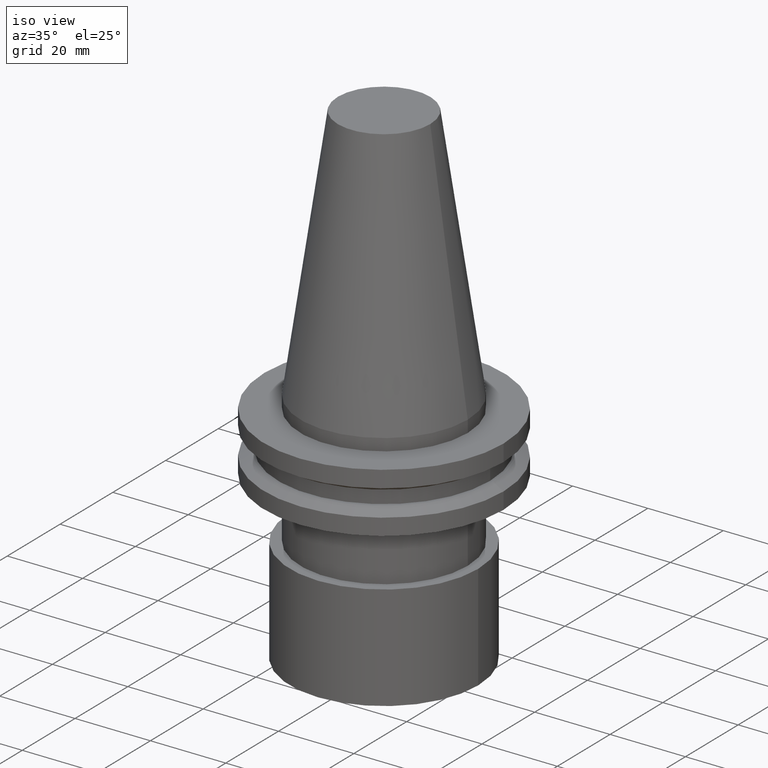
[diagram: clean part render]
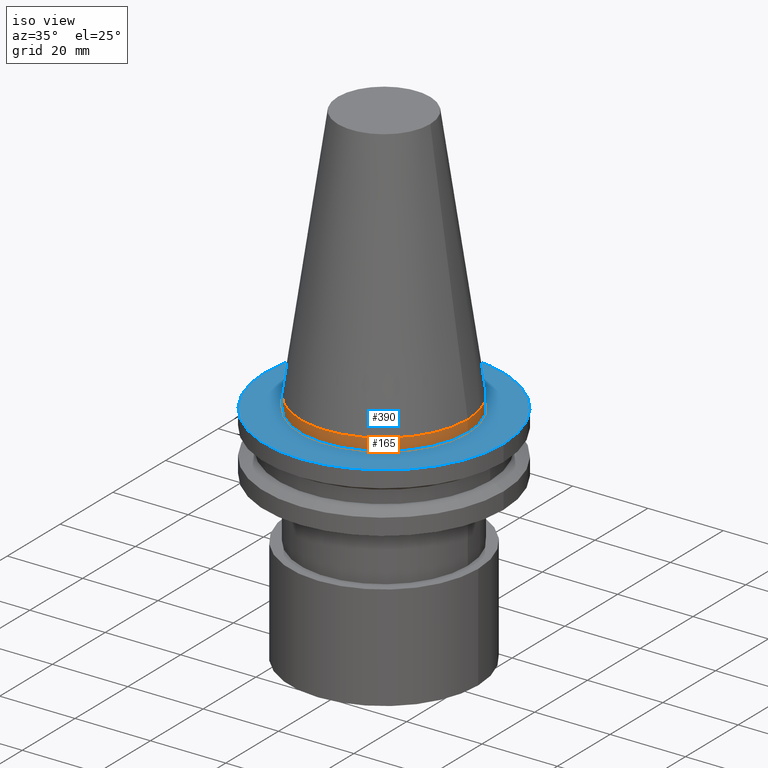
[diagram: same view with the hole feature highlighted: cylindrical wall and planar end face, labeled with their STEP entity ids]
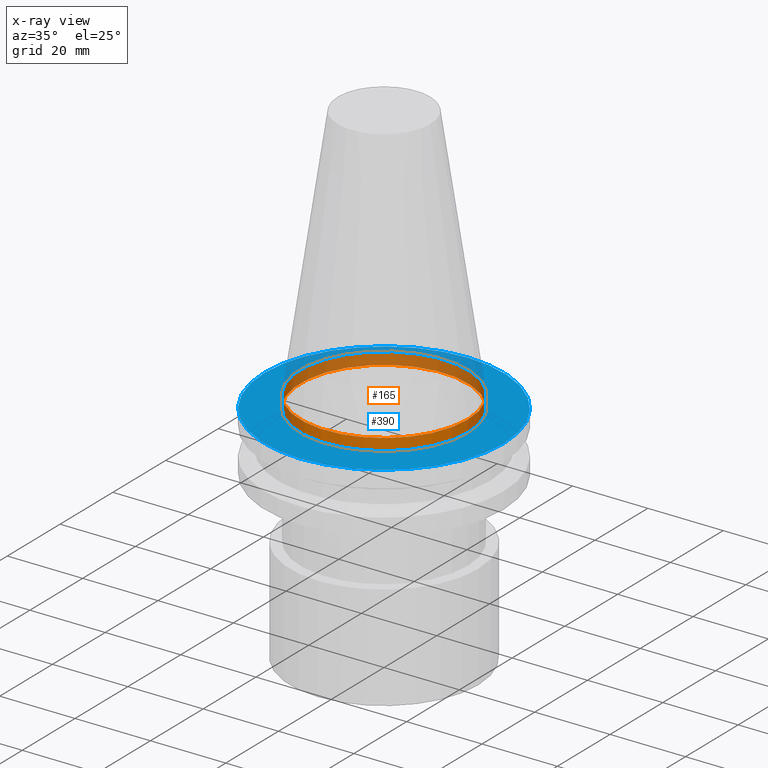
[diagram: x-ray of the same camera — body ghosted, the hole faces saturated]
A machine part, iso view. The highlighted faces form one hole feature of diameter 44.45 mm: the cylindrical wall (entity #165, orange) and its adjacent planar end face (entity #390, blue) — they share a circular edge in the B-rep.
The next image is the same camera in x-ray (body ghosted, the hole faces saturated) — the bore reads through the body.
Wall:
#6 = AXIS2_PLACEMENT_3D ( 'NONE', #240, #208, #359 ) ;
#43 = CARTESIAN_POINT ( 'NONE',  ( 22.22500000000000142, 0.000000000000000000, -3.174999999999997158 ) ) ;
#64 = AXIS2_PLACEMENT_3D ( 'NONE', #297, #111, #172 ) ;
#73 = CARTESIAN_POINT ( 'NONE',  ( 22.22500000000000142, 0.000000000000000000, 0.000000000000000000 ) ) ;
#89 = CIRCLE ( 'NONE', #145, 22.22500000000000142 ) ;
#111 = DIRECTION ( 'NONE',  ( -0.000000000000000000, -0.000000000000000000, 1.000000000000000000 ) ) ;
#133 = FACE_OUTER_BOUND ( 'NONE', #221, .T. ) ;
#143 = CYLINDRICAL_SURFACE ( 'NONE', #64, 22.22500000000000142 ) ;
#145 = AXIS2_PLACEMENT_3D ( 'NONE', #180, #397, #179 ) ;
#165 = ADVANCED_FACE ( 'NONE', ( #173, #133 ), #143, .T. ) ;
#172 = DIRECTION ( 'NONE',  ( 1.000000000000000000, 0.000000000000000000, 0.000000000000000000 ) ) ;
#173 = FACE_OUTER_BOUND ( 'NONE', #342, .T. ) ;
#179 = DIRECTION ( 'NONE',  ( 1.000000000000000000, 0.000000000000000000, 0.000000000000000000 ) ) ;
#180 = CARTESIAN_POINT ( 'NONE',  ( 0.000000000000000000, 0.000000000000000000, 0.000000000000000000 ) ) ;
#206 = EDGE_CURVE ( 'NONE', #374, #374, #352, .T. ) ;
#208 = DIRECTION ( 'NONE',  ( -0.000000000000000000, -0.000000000000000000, 1.000000000000000000 ) ) ;
#221 = EDGE_LOOP ( 'NONE', ( #295 ) ) ;
#225 = VERTEX_POINT ( 'NONE', #73 ) ;
#232 = ORIENTED_EDGE ( 'NONE', *, *, #333, .F. ) ;
#240 = CARTESIAN_POINT ( 'NONE',  ( 0.000000000000000000, 0.000000000000000000, -3.174999999999997158 ) ) ;
#295 = ORIENTED_EDGE ( 'NONE', *, *, #206, .T. ) ;
#297 = CARTESIAN_POINT ( 'NONE',  ( 0.000000000000000000, 0.000000000000000000, 68.25000000000000000 ) ) ;
#333 = EDGE_CURVE ( 'NONE', #225, #225, #89, .T. ) ;
#342 = EDGE_LOOP ( 'NONE', ( #232 ) ) ;
#352 = CIRCLE ( 'NONE', #6, 22.22500000000000142 ) ;
#359 = DIRECTION ( 'NONE',  ( 1.000000000000000000, 0.000000000000000000, 0.000000000000000000 ) ) ;
#374 = VERTEX_POINT ( 'NONE', #43 ) ;
#397 = DIRECTION ( 'NONE',  ( -0.000000000000000000, -0.000000000000000000, 1.000000000000000000 ) ) ;
End face:
#6 = AXIS2_PLACEMENT_3D ( 'NONE', #240, #208, #359 ) ;
#43 = CARTESIAN_POINT ( 'NONE',  ( 22.22500000000000142, 0.000000000000000000, -3.174999999999997158 ) ) ;
#65 = AXIS2_PLACEMENT_3D ( 'NONE', #275, #303, #341 ) ;
#92 = FACE_OUTER_BOUND ( 'NONE', #134, .T. ) ;
#115 = DIRECTION ( 'NONE',  ( -1.000000000000000000, 0.000000000000000000, -0.000000000000000000 ) ) ;
#134 = EDGE_LOOP ( 'NONE', ( #153 ) ) ;
#151 = AXIS2_PLACEMENT_3D ( 'NONE', #247, #270, #115 ) ;
#153 = ORIENTED_EDGE ( 'NONE', *, *, #355, .T. ) ;
#154 = PLANE ( 'NONE',  #151 ) ;
#167 = ORIENTED_EDGE ( 'NONE', *, *, #206, .F. ) ;
#206 = EDGE_CURVE ( 'NONE', #374, #374, #352, .T. ) ;
#208 = DIRECTION ( 'NONE',  ( -0.000000000000000000, -0.000000000000000000, 1.000000000000000000 ) ) ;
#240 = CARTESIAN_POINT ( 'NONE',  ( 0.000000000000000000, 0.000000000000000000, -3.174999999999997158 ) ) ;
#242 = FACE_BOUND ( 'NONE', #353, .T. ) ;
#247 = CARTESIAN_POINT ( 'NONE',  ( 0.000000000000000000, 31.75000000000000000, -3.174999999999993605 ) ) ;
#270 = DIRECTION ( 'NONE',  ( 0.000000000000000000, 0.000000000000000000, -1.000000000000000000 ) ) ;
#275 = CARTESIAN_POINT ( 'NONE',  ( 0.000000000000000000, 0.000000000000000000, -3.174999999999997158 ) ) ;
#303 = DIRECTION ( 'NONE',  ( -0.000000000000000000, -0.000000000000000000, 1.000000000000000000 ) ) ;
#320 = VERTEX_POINT ( 'NONE', #344 ) ;
#341 = DIRECTION ( 'NONE',  ( 1.000000000000000000, 0.000000000000000000, 0.000000000000000000 ) ) ;
#344 = CARTESIAN_POINT ( 'NONE',  ( 31.75000000000000000, 0.000000000000000000, -3.174999999999997158 ) ) ;
#352 = CIRCLE ( 'NONE', #6, 22.22500000000000142 ) ;
#353 = EDGE_LOOP ( 'NONE', ( #167 ) ) ;
#355 = EDGE_CURVE ( 'NONE', #320, #320, #369, .T. ) ;
#359 = DIRECTION ( 'NONE',  ( 1.000000000000000000, 0.000000000000000000, 0.000000000000000000 ) ) ;
#369 = CIRCLE ( 'NONE', #65, 31.75000000000000000 ) ;
#374 = VERTEX_POINT ( 'NONE', #43 ) ;
#390 = ADVANCED_FACE ( 'NONE', ( #242, #92 ), #154, .F. ) ;